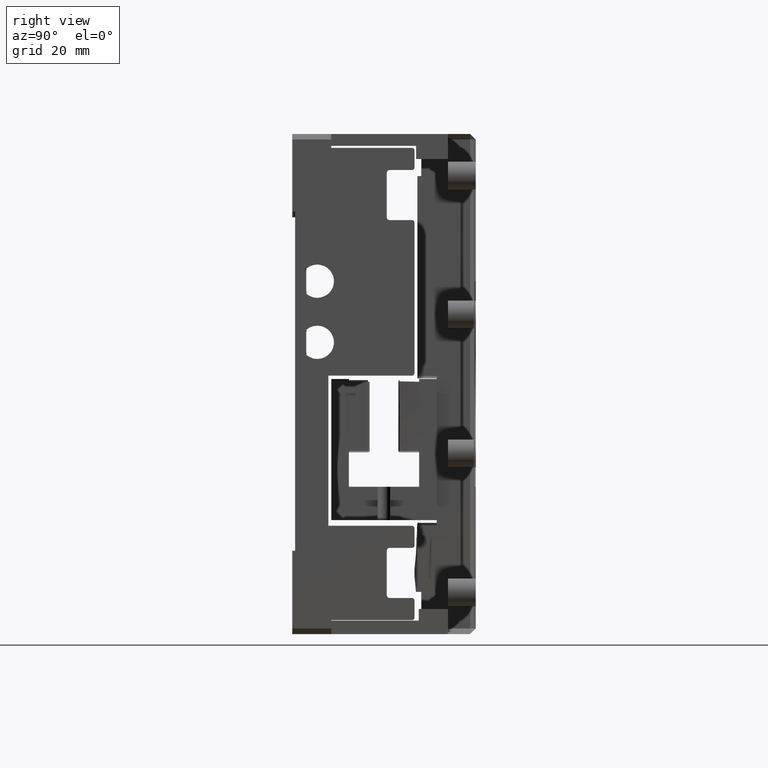
[diagram: clean part render]
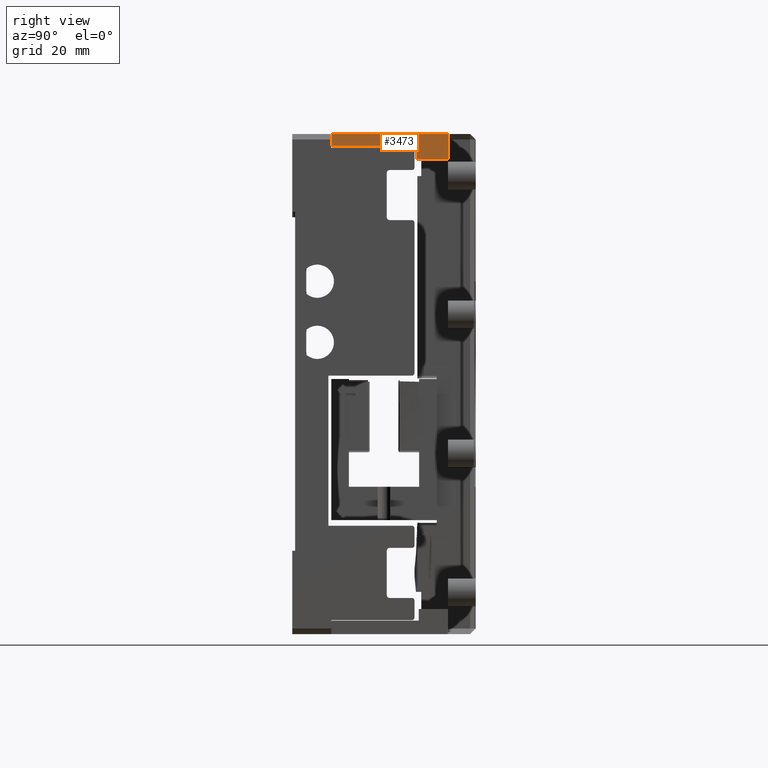
[diagram: same view with one face highlighted and labeled with its STEP entity id]
A machine part, right view. The second image highlights one B-rep face of the part: STEP entity #3473.
In plain terms, the highlighted planar face has unit normal (-1, 0, 0).
Its self-contained STEP definition (entity closure, byte-faithful):
#1306 = VERTEX_POINT ( 'NONE', #10652 ) ;
#1925 = DIRECTION ( 'NONE',  ( -0.000000000000000000, -0.000000000000000000, -1.000000000000000000 ) ) ;
#2411 = CARTESIAN_POINT ( 'NONE',  ( 90.00000000000002842, 27.49999999999987921, 89.99999999999997158 ) ) ;
#2849 = ORIENTED_EDGE ( 'NONE', *, *, #22669, .T. ) ;
#2864 = CARTESIAN_POINT ( 'NONE',  ( 90.00000000000002842, 6.499999999999977796, 90.00000000000001421 ) ) ;
#3211 = CARTESIAN_POINT ( 'NONE',  ( 90.00000000000002842, 21.78407945471149887, 87.84669209543949364 ) ) ;
#3473 = ADVANCED_FACE ( 'NONE', ( #28313 ), #25842, .F. ) ;
#4136 = VECTOR ( 'NONE', #27329, 1000.000000000000000 ) ;
#5020 = VECTOR ( 'NONE', #27820, 1000.000000000000000 ) ;
#5893 = LINE ( 'NONE', #12507, #25002 ) ;
#6602 = EDGE_CURVE ( 'NONE', #9655, #9410, #27680, .T. ) ;
#7476 = LINE ( 'NONE', #7753, #14797 ) ;
#7753 = CARTESIAN_POINT ( 'NONE',  ( 90.00000000000002842, 27.49999999999988631, 85.49999999999998579 ) ) ;
#8251 = DIRECTION ( 'NONE',  ( -1.000000000000000000, 0.000000000000000000, 0.000000000000000000 ) ) ;
#8885 = LINE ( 'NONE', #2864, #4136 ) ;
#8998 = ORIENTED_EDGE ( 'NONE', *, *, #17055, .T. ) ;
#9410 = VERTEX_POINT ( 'NONE', #22594 ) ;
#9655 = VERTEX_POINT ( 'NONE', #27253 ) ;
#9713 = EDGE_LOOP ( 'NONE', ( #2849, #22395, #21981, #8998, #20780, #22207 ) ) ;
#10652 = CARTESIAN_POINT ( 'NONE',  ( 90.00000000000002842, 27.49999999999988631, 85.49999999999998579 ) ) ;
#11822 = VERTEX_POINT ( 'NONE', #22982 ) ;
#12507 = CARTESIAN_POINT ( 'NONE',  ( 90.00000000000002842, 21.78407945471149887, 85.49999999999998579 ) ) ;
#12633 = CARTESIAN_POINT ( 'NONE',  ( 90.00000000000002842, 21.78407945471149887, 85.49999999999998579 ) ) ;
#14797 = VECTOR ( 'NONE', #23126, 1000.000000000000000 ) ;
#16333 = VECTOR ( 'NONE', #20416, 1000.000000000000000 ) ;
#16494 = VERTEX_POINT ( 'NONE', #27755 ) ;
#17055 = EDGE_CURVE ( 'NONE', #9410, #20055, #5893, .T. ) ;
#18840 = EDGE_CURVE ( 'NONE', #20055, #1306, #7476, .T. ) ;
#19385 = DIRECTION ( 'NONE',  ( 0.000000000000000000, 0.000000000000000000, 1.000000000000000000 ) ) ;
#20055 = VERTEX_POINT ( 'NONE', #12633 ) ;
#20416 = DIRECTION ( 'NONE',  ( -0.000000000000000000, -6.938893903907125826E-15, 1.000000000000000000 ) ) ;
#20484 = EDGE_CURVE ( 'NONE', #1306, #11822, #22479, .T. ) ;
#20780 = ORIENTED_EDGE ( 'NONE', *, *, #18840, .T. ) ;
#21981 = ORIENTED_EDGE ( 'NONE', *, *, #6602, .T. ) ;
#22207 = ORIENTED_EDGE ( 'NONE', *, *, #20484, .T. ) ;
#22395 = ORIENTED_EDGE ( 'NONE', *, *, #22792, .T. ) ;
#22479 = LINE ( 'NONE', #2411, #16333 ) ;
#22594 = CARTESIAN_POINT ( 'NONE',  ( 90.00000000000002842, 21.78407945471149887, 87.84669209543949364 ) ) ;
#22669 = EDGE_CURVE ( 'NONE', #11822, #16494, #8885, .T. ) ;
#22792 = EDGE_CURVE ( 'NONE', #16494, #9655, #28054, .T. ) ;
#22982 = CARTESIAN_POINT ( 'NONE',  ( 90.00000000000002842, 27.49999999999987921, 89.99999999999997158 ) ) ;
#23126 = DIRECTION ( 'NONE',  ( -0.000000000000000000, 1.000000000000000000, -0.000000000000000000 ) ) ;
#25002 = VECTOR ( 'NONE', #1925, 1000.000000000000000 ) ;
#25842 = PLANE ( 'NONE',  #27883 ) ;
#25857 = DIRECTION ( 'NONE',  ( -0.000000000000000000, -0.000000000000000000, -1.000000000000000000 ) ) ;
#27253 = CARTESIAN_POINT ( 'NONE',  ( 90.00000000000002842, 6.499999999999976907, 87.84669209543949364 ) ) ;
#27329 = DIRECTION ( 'NONE',  ( -0.000000000000000000, -1.000000000000000000, 1.982541115402074773E-15 ) ) ;
#27680 = LINE ( 'NONE', #3211, #5020 ) ;
#27752 = CARTESIAN_POINT ( 'NONE',  ( 90.00000000000002842, 6.499999999999976907, 87.84669209543949364 ) ) ;
#27755 = CARTESIAN_POINT ( 'NONE',  ( 90.00000000000002842, 6.499999999999977796, 90.00000000000001421 ) ) ;
#27820 = DIRECTION ( 'NONE',  ( -0.000000000000000000, 1.000000000000000000, -0.000000000000000000 ) ) ;
#27883 = AXIS2_PLACEMENT_3D ( 'NONE', #28602, #8251, #19385 ) ;
#28054 = LINE ( 'NONE', #27752, #28934 ) ;
#28313 = FACE_OUTER_BOUND ( 'NONE', #9713, .T. ) ;
#28602 = CARTESIAN_POINT ( 'NONE',  ( 90.00000000000002842, 0.000000000000000000, 0.000000000000000000 ) ) ;
#28934 = VECTOR ( 'NONE', #25857, 1000.000000000000000 ) ;